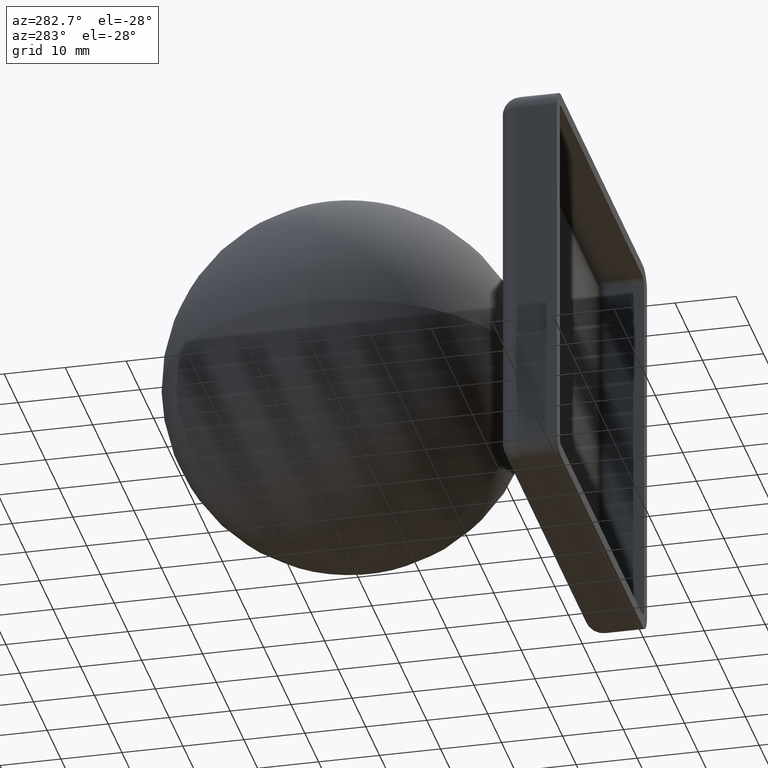
[diagram: clean part render]
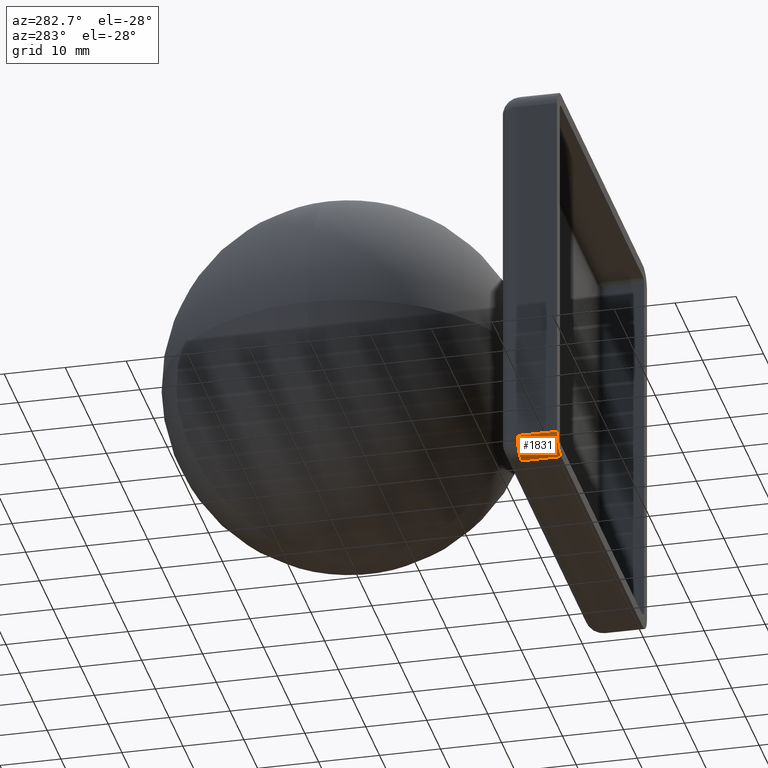
[diagram: same view with one face highlighted and labeled with its STEP entity id]
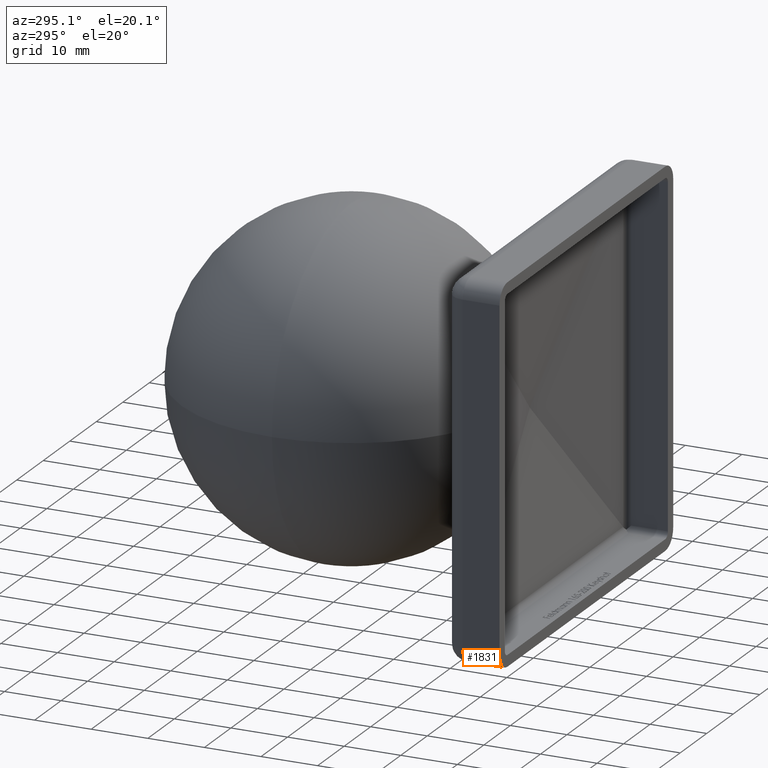
[diagram: same view with one face highlighted and labeled with its STEP entity id]
A machine part, auxiliary view. The second image highlights one B-rep face of the part: STEP entity #1831.
A second angle (auxiliary view) of the same face is appended — the face is thin or edge-on in the first view.
In plain terms, the highlighted cylindrical surface (edge-blend (fillet) strip) has radius 3 mm, axis along (0, -1, 0).
Its self-contained STEP definition (entity closure, byte-faithful):
#21 = LINE ( 'NONE', #16933, #6004 ) ;
#96 = EDGE_CURVE ( 'NONE', #6724, #11315, #2596, .T. ) ;
#817 = CARTESIAN_POINT ( 'NONE',  ( -29.75000000000004300, 0.0000000000000000000, -32.75000000000000000 ) ) ;
#1218 = DIRECTION ( 'NONE',  ( -0.0000000000000000000, 1.000000000000000000, -0.0000000000000000000 ) ) ;
#1223 = AXIS2_PLACEMENT_3D ( 'NONE', #5555, #8214, #3013 ) ;
#1492 = AXIS2_PLACEMENT_3D ( 'NONE', #7845, #11825, #16978 ) ;
#1831 = ADVANCED_FACE ( 'NONE', ( #8484 ), #13973, .T. ) ;
#2079 = ORIENTED_EDGE ( 'NONE', *, *, #14285, .F. ) ;
#2596 = LINE ( 'NONE', #9335, #16571 ) ;
#3013 = DIRECTION ( 'NONE',  ( 0.0000000000000000000, 0.0000000000000000000, 1.000000000000000000 ) ) ;
#3368 = ORIENTED_EDGE ( 'NONE', *, *, #16819, .F. ) ;
#4213 = DIRECTION ( 'NONE',  ( 0.0000000000000000000, -1.000000000000000000, 0.0000000000000000000 ) ) ;
#4326 = CARTESIAN_POINT ( 'NONE',  ( -29.75000000000004300, 12.00000000000000000, -29.75000000000000400 ) ) ;
#4916 = CIRCLE ( 'NONE', #1492, 2.999999999999999100 ) ;
#5473 = DIRECTION ( 'NONE',  ( 0.0000000000000000000, 0.0000000000000000000, -1.000000000000000000 ) ) ;
#5555 = CARTESIAN_POINT ( 'NONE',  ( -29.75000000000004300, 0.0000000000000000000, -29.75000000000000400 ) ) ;
#6004 = VECTOR ( 'NONE', #1218, 1000.000000000000000 ) ;
#6636 = DIRECTION ( 'NONE',  ( 0.0000000000000000000, -1.000000000000000000, 0.0000000000000000000 ) ) ;
#6667 = CARTESIAN_POINT ( 'NONE',  ( -29.75000000000003900, 6.500000000000000000, -32.74999999999996400 ) ) ;
#6724 = VERTEX_POINT ( 'NONE', #8966 ) ;
#6962 = ORIENTED_EDGE ( 'NONE', *, *, #96, .F. ) ;
#7465 = EDGE_CURVE ( 'NONE', #6724, #7525, #4916, .T. ) ;
#7525 = VERTEX_POINT ( 'NONE', #6667 ) ;
#7845 = CARTESIAN_POINT ( 'NONE',  ( -29.75000000000004300, 6.500000000000000900, -29.75000000000000400 ) ) ;
#8214 = DIRECTION ( 'NONE',  ( -0.0000000000000000000, -1.000000000000000000, -0.0000000000000000000 ) ) ;
#8484 = FACE_OUTER_BOUND ( 'NONE', #8870, .T. ) ;
#8588 = ORIENTED_EDGE ( 'NONE', *, *, #7465, .T. ) ;
#8870 = EDGE_LOOP ( 'NONE', ( #6962, #8588, #2079, #3368 ) ) ;
#8966 = CARTESIAN_POINT ( 'NONE',  ( -32.74999999999997200, 6.500000000000000000, -29.75000000000000400 ) ) ;
#9335 = CARTESIAN_POINT ( 'NONE',  ( -32.75000000000004300, 12.00000000000000000, -29.75000000000000400 ) ) ;
#9543 = VERTEX_POINT ( 'NONE', #817 ) ;
#11238 = CARTESIAN_POINT ( 'NONE',  ( -32.75000000000004300, 0.0000000000000000000, -29.75000000000000400 ) ) ;
#11315 = VERTEX_POINT ( 'NONE', #11238 ) ;
#11825 = DIRECTION ( 'NONE',  ( 0.0000000000000000000, -1.000000000000000000, 0.0000000000000000000 ) ) ;
#12334 = CIRCLE ( 'NONE', #1223, 2.999999999999999100 ) ;
#13973 = CYLINDRICAL_SURFACE ( 'NONE', #15615, 2.999999999999999100 ) ;
#14285 = EDGE_CURVE ( 'NONE', #9543, #7525, #21, .T. ) ;
#15615 = AXIS2_PLACEMENT_3D ( 'NONE', #4326, #4213, #5473 ) ;
#16571 = VECTOR ( 'NONE', #6636, 1000.000000000000000 ) ;
#16819 = EDGE_CURVE ( 'NONE', #11315, #9543, #12334, .T. ) ;
#16933 = CARTESIAN_POINT ( 'NONE',  ( -29.75000000000004300, 12.00000000000000000, -32.75000000000000000 ) ) ;
#16978 = DIRECTION ( 'NONE',  ( 0.0000000000000000000, 0.0000000000000000000, -1.000000000000000000 ) ) ;